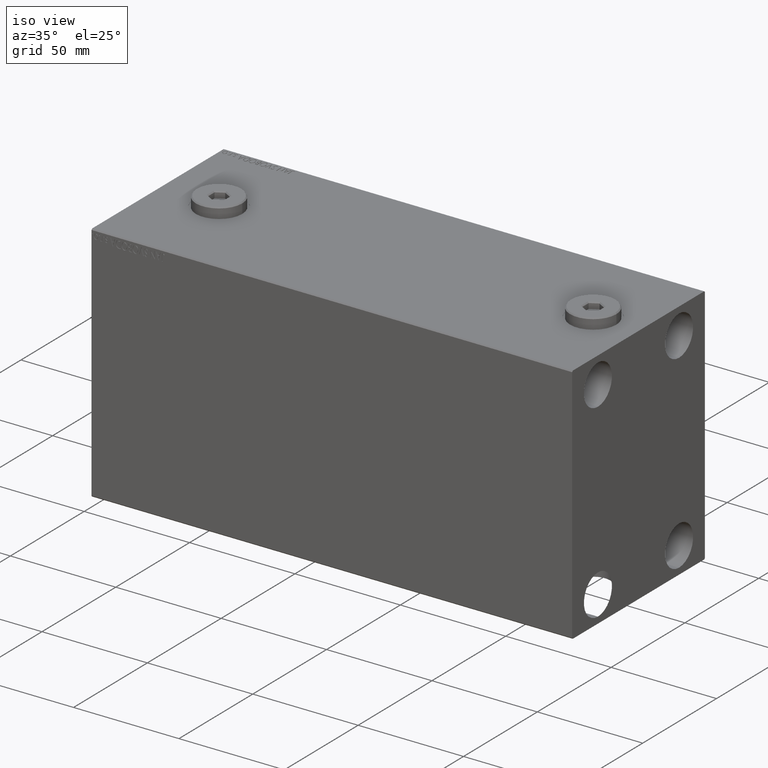
[diagram: clean part render]
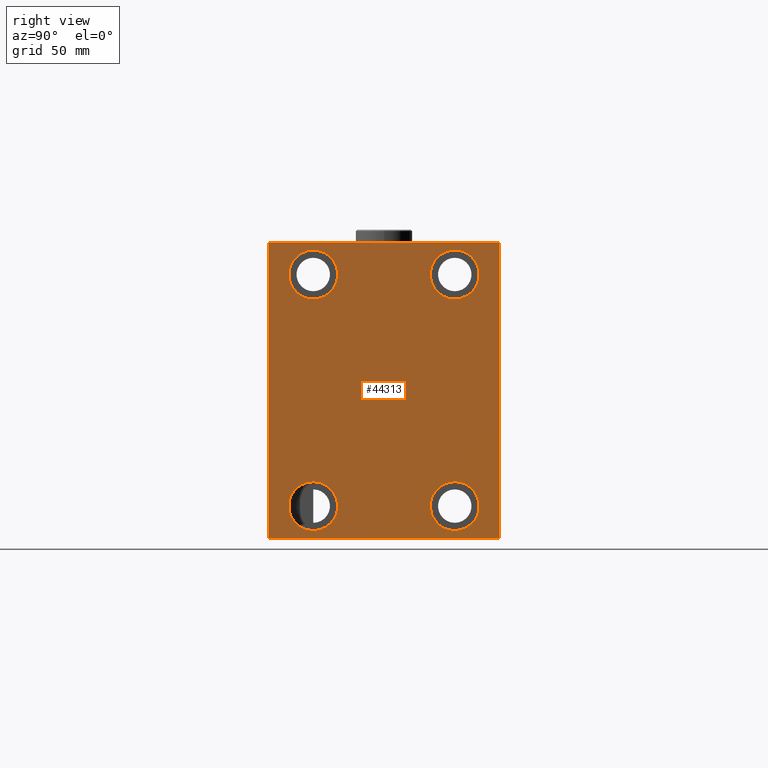
[diagram: tour spotlight — one face highlighted and labeled with its STEP entity id]
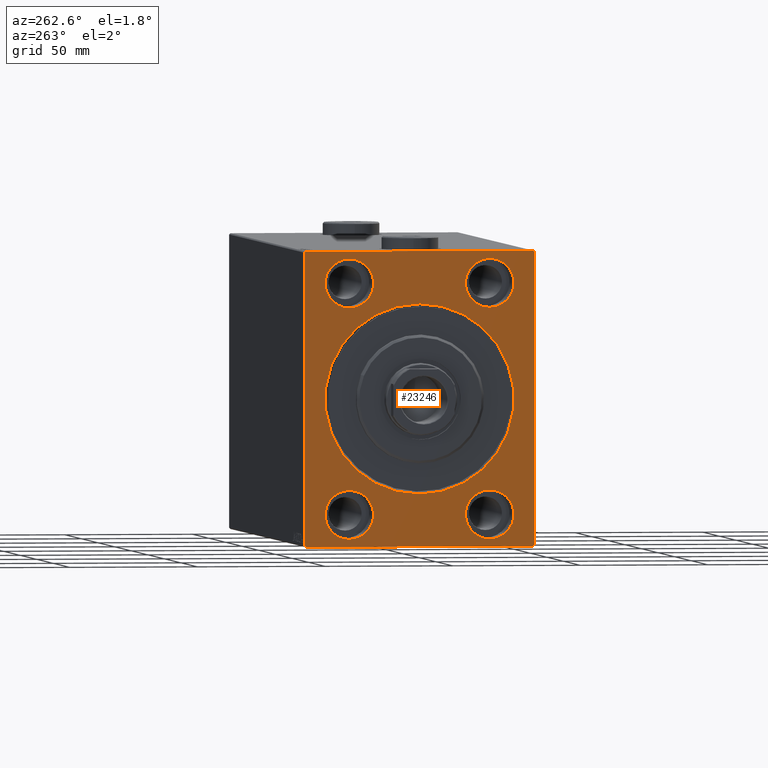
[diagram: tour spotlight — one face highlighted and labeled with its STEP entity id]
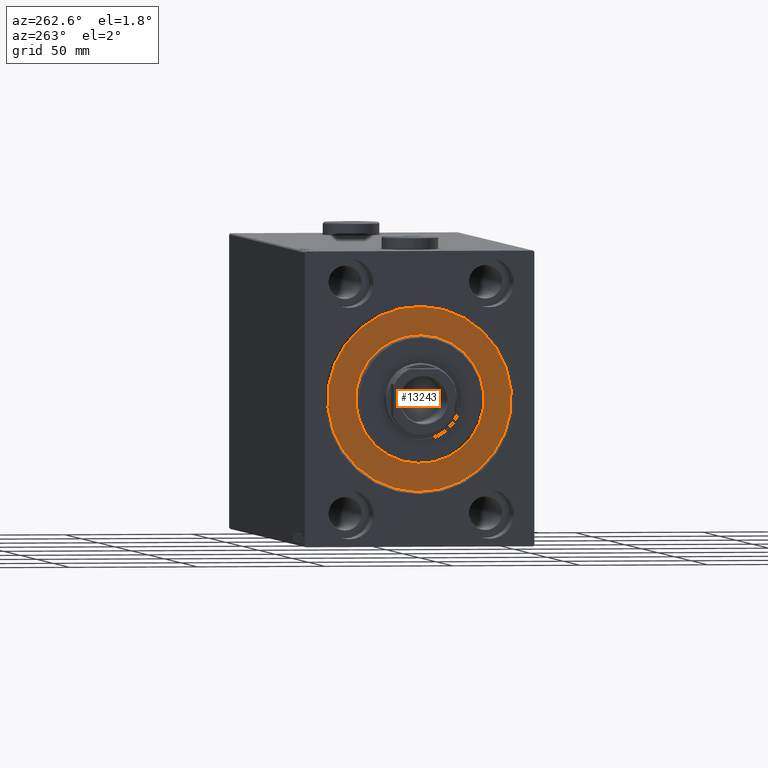
[diagram: tour spotlight — one face highlighted and labeled with its STEP entity id]
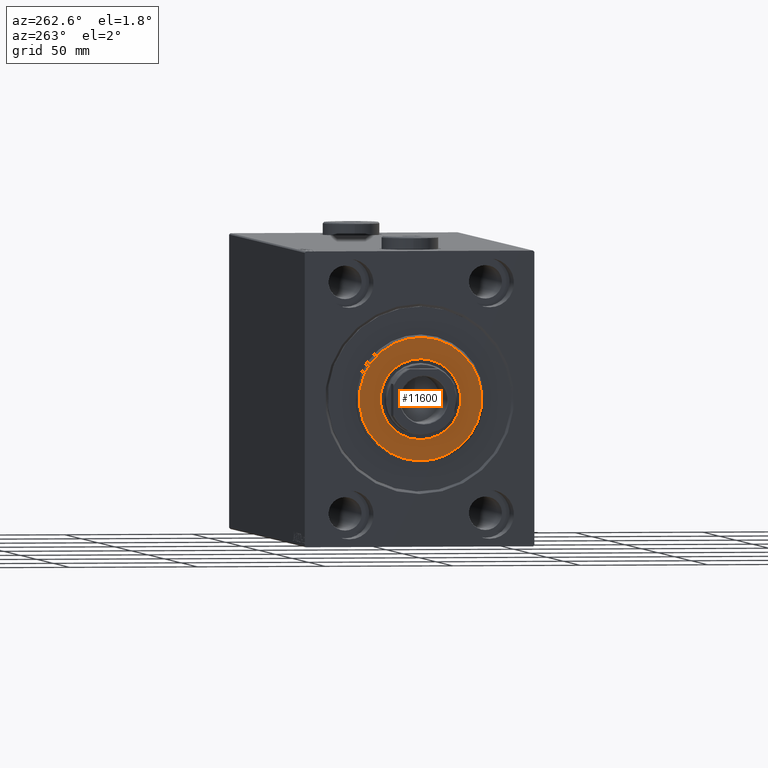
[diagram: tour spotlight — one face highlighted and labeled with its STEP entity id]
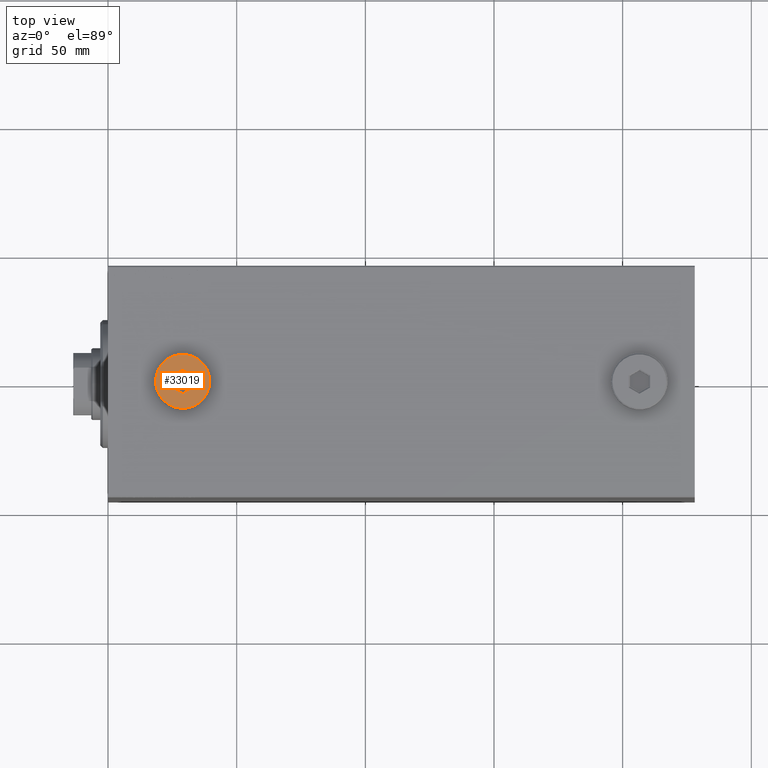
[diagram: tour spotlight — one face highlighted and labeled with its STEP entity id]
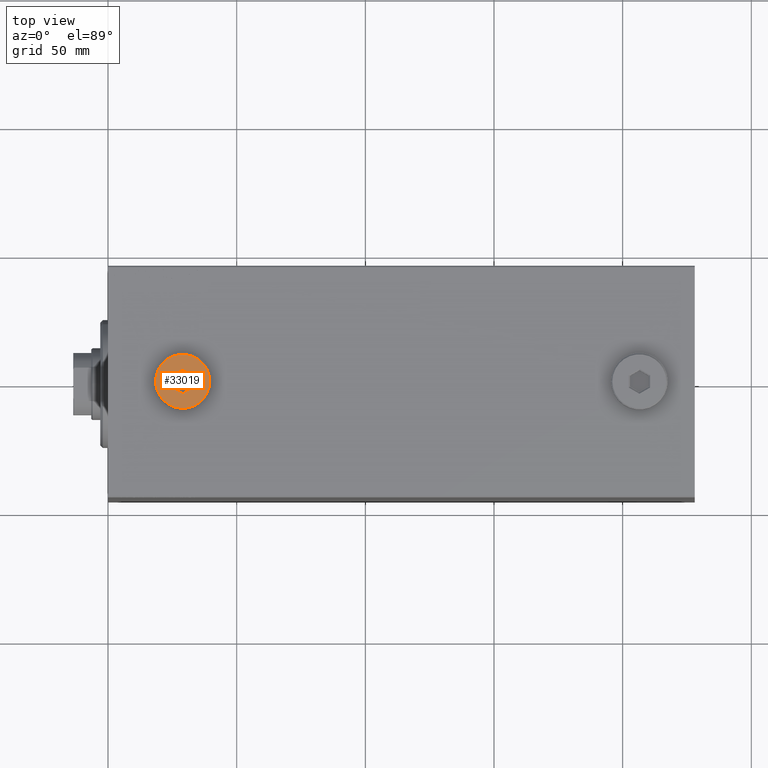
[diagram: tour spotlight — one face highlighted and labeled with its STEP entity id]
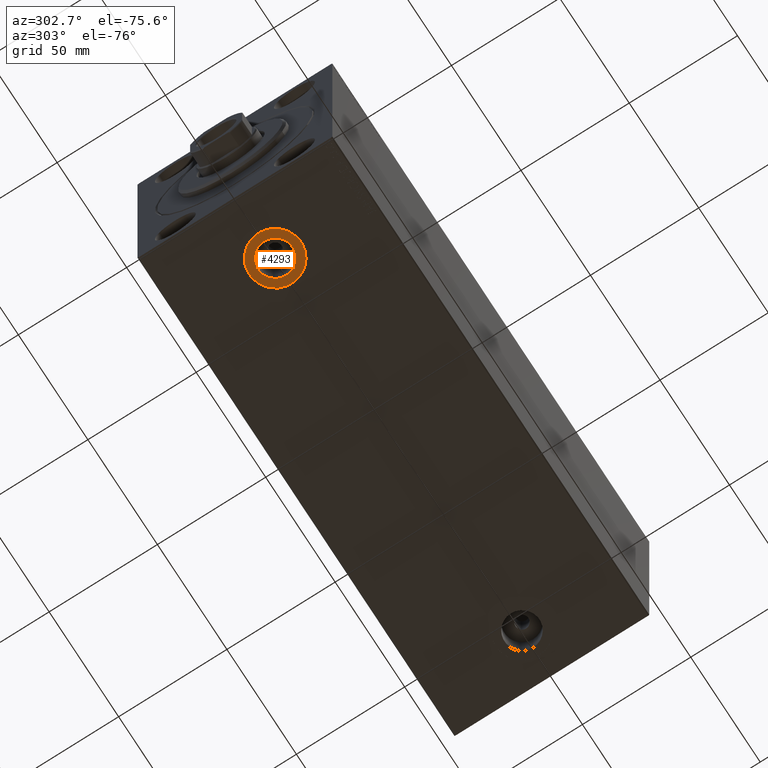
[diagram: tour spotlight — one face highlighted and labeled with its STEP entity id]
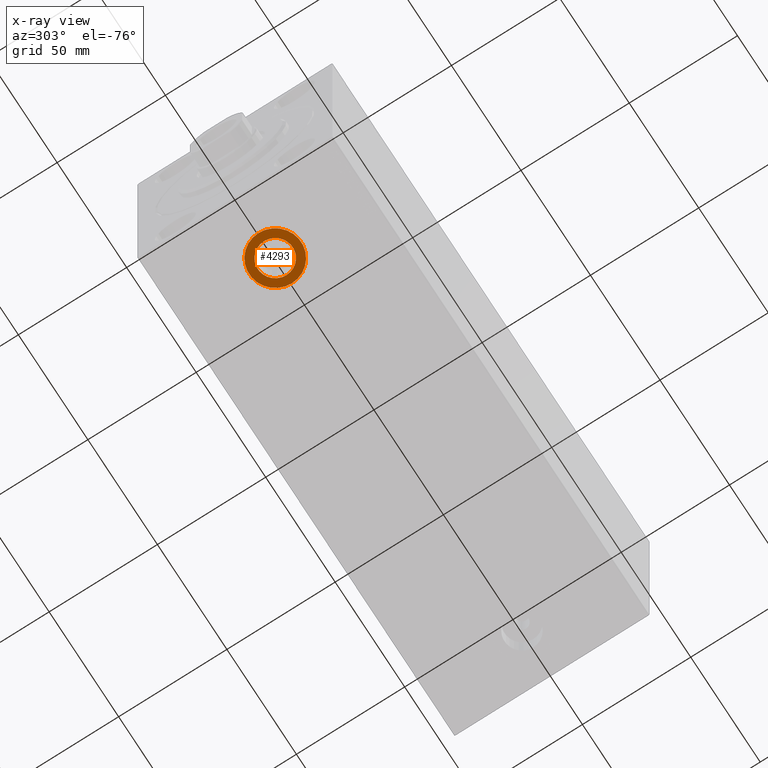
[diagram: x-ray of the same camera — body ghosted, this tour face saturated]
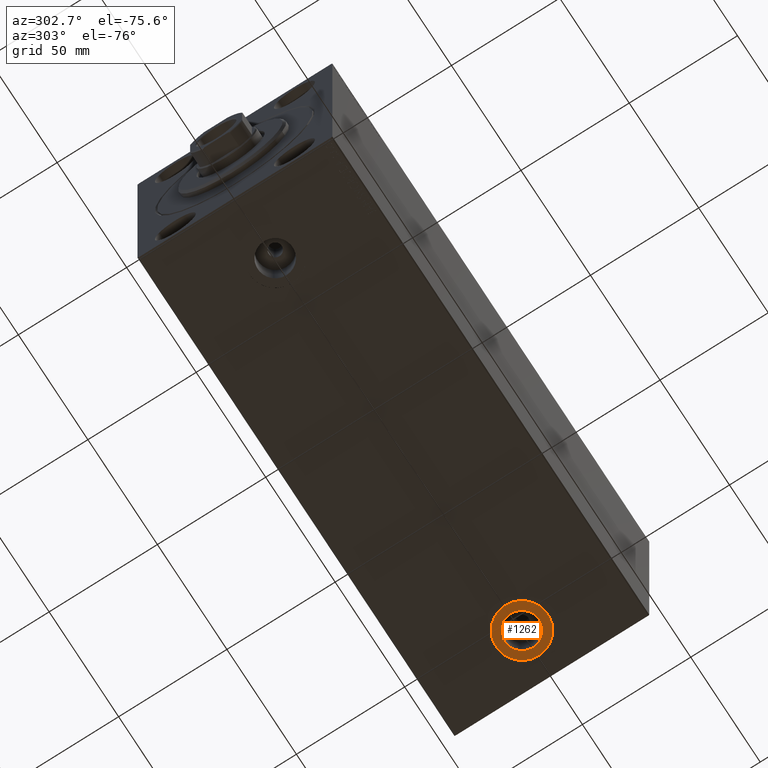
[diagram: tour spotlight — one face highlighted and labeled with its STEP entity id]
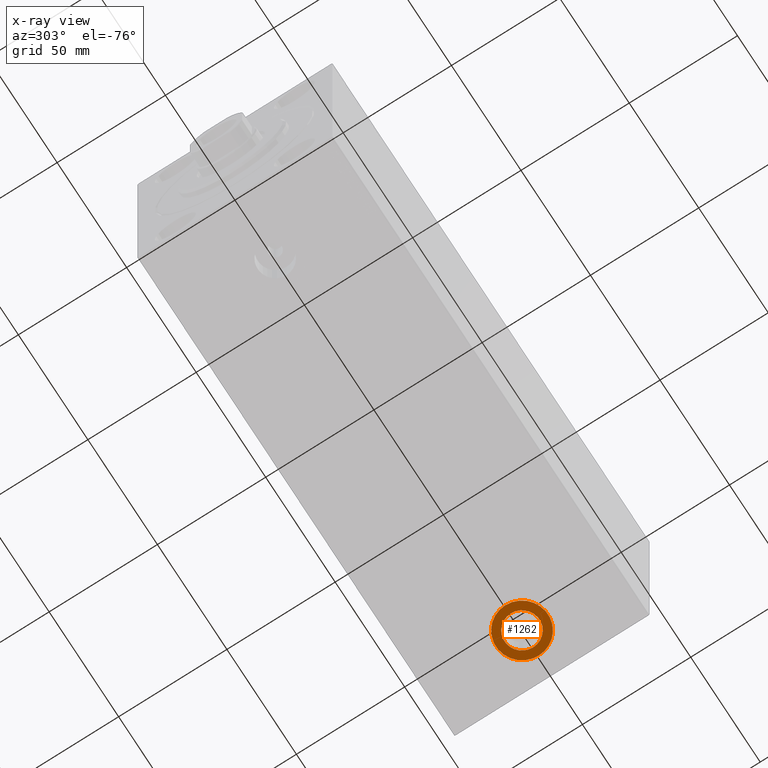
[diagram: x-ray of the same camera — body ghosted, this tour face saturated]
A machine part: a face-by-face anatomy tour. The part has 917 B-rep faces; the first image is the clean iso view, then the 8 largest visible faces are spotlighted one at a time (largest first), each with its STEP entity span.

Face 1 — right view, entity #44313. In plain terms, the highlighted planar face has unit normal (1, 0, 0).
Definition (entity closure, byte-faithful):
#94 = CARTESIAN_POINT ( 'NONE',  ( 228.0000000000000000, -27.49999999999998934, 54.50000000000000711 ) ) ;
#477 = EDGE_LOOP ( 'NONE', ( #38685, #41559 ) ) ;
#1184 = CIRCLE ( 'NONE', #8511, 9.500000000000001776 ) ;
#1192 = FACE_OUTER_BOUND ( 'NONE', #5665, .T. ) ;
#1497 = DIRECTION ( 'NONE',  ( -0.000000000000000000, -0.7071067811865671127, 0.7071067811865279218 ) ) ;
#1806 = DIRECTION ( 'NONE',  ( 0.000000000000000000, 0.000000000000000000, 1.000000000000000000 ) ) ;
#1946 = LINE ( 'NONE', #18442, #4343 ) ;
#2071 = CARTESIAN_POINT ( 'NONE',  ( 228.0000000000000000, -27.50000000000000000, -35.49999999999998579 ) ) ;
#2218 = CIRCLE ( 'NONE', #33683, 9.500000000000001776 ) ;
#2494 = LINE ( 'NONE', #17141, #44471 ) ;
#2508 = VERTEX_POINT ( 'NONE', #9547 ) ;
#3362 = CARTESIAN_POINT ( 'NONE',  ( 228.0000000000000000, 27.49999999999998934, -54.49999999999998579 ) ) ;
#3387 = CARTESIAN_POINT ( 'NONE',  ( 228.0000000000000000, 27.49999999999998934, -35.49999999999998579 ) ) ;
#3466 = ORIENTED_EDGE ( 'NONE', *, *, #22382, .T. ) ;
#4343 = VECTOR ( 'NONE', #1497, 1000.000000000000000 ) ;
#4631 = FACE_BOUND ( 'NONE', #25191, .T. ) ;
#4959 = CARTESIAN_POINT ( 'NONE',  ( 228.0000000000000000, 51.00000000000125056, -50.99999999999841549 ) ) ;
#4980 = VERTEX_POINT ( 'NONE', #2071 ) ;
#5665 = EDGE_LOOP ( 'NONE', ( #17437, #3466, #29252, #26441, #43602, #30848, #35297, #12758 ) ) ;
#6677 = VERTEX_POINT ( 'NONE', #32261 ) ;
#8511 = AXIS2_PLACEMENT_3D ( 'NONE', #21954, #15085, #25631 ) ;
#8608 = CIRCLE ( 'NONE', #34210, 9.500000000000001776 ) ;
#8760 = ORIENTED_EDGE ( 'NONE', *, *, #20994, .T. ) ;
#8972 = PLANE ( 'NONE',  #21768 ) ;
#9512 = VECTOR ( 'NONE', #23740, 1000.000000000000000 ) ;
#9547 = CARTESIAN_POINT ( 'NONE',  ( 228.0000000000000000, 45.00000000000000000, 57.00000000000000711 ) ) ;
#10118 = DIRECTION ( 'NONE',  ( -1.000000000000000000, -0.000000000000000000, -0.000000000000000000 ) ) ;
#10352 = EDGE_CURVE ( 'NONE', #6677, #19667, #35811, .T. ) ;
#10586 = VERTEX_POINT ( 'NONE', #37839 ) ;
#10639 = VERTEX_POINT ( 'NONE', #29097 ) ;
#10685 = EDGE_LOOP ( 'NONE', ( #10815, #42499 ) ) ;
#10815 = ORIENTED_EDGE ( 'NONE', *, *, #32636, .T. ) ;
#11460 = CARTESIAN_POINT ( 'NONE',  ( 228.0000000000000000, 45.00000000000001421, -57.50000000000000711 ) ) ;
#11723 = CARTESIAN_POINT ( 'NONE',  ( 228.0000000000000000, -27.49999999999998934, 45.00000000000000711 ) ) ;
#11961 = FACE_BOUND ( 'NONE', #10685, .T. ) ;
#11982 = EDGE_CURVE ( 'NONE', #15198, #36243, #22589, .T. ) ;
#12132 = DIRECTION ( 'NONE',  ( -1.000000000000000000, -0.000000000000000000, -0.000000000000000000 ) ) ;
#12424 = FACE_BOUND ( 'NONE', #477, .T. ) ;
#12695 = CARTESIAN_POINT ( 'NONE',  ( 228.0000000000000000, 44.49999999999998579, -57.50000000000000711 ) ) ;
#12758 = ORIENTED_EDGE ( 'NONE', *, *, #16203, .T. ) ;
#13126 = DIRECTION ( 'NONE',  ( 0.000000000000000000, 0.000000000000000000, 1.000000000000000000 ) ) ;
#13878 = AXIS2_PLACEMENT_3D ( 'NONE', #16113, #20213, #13126 ) ;
#14600 = CIRCLE ( 'NONE', #13878, 9.500000000000001776 ) ;
#15085 = DIRECTION ( 'NONE',  ( -1.000000000000000000, -0.000000000000000000, -0.000000000000000000 ) ) ;
#15109 = DIRECTION ( 'NONE',  ( 0.000000000000000000, 0.000000000000000000, 1.000000000000000000 ) ) ;
#15164 = DIRECTION ( 'NONE',  ( 1.000000000000000000, 0.000000000000000000, 0.000000000000000000 ) ) ;
#15198 = VERTEX_POINT ( 'NONE', #12695 ) ;
#15381 = DIRECTION ( 'NONE',  ( 0.000000000000000000, 0.000000000000000000, 1.000000000000000000 ) ) ;
#15731 = CIRCLE ( 'NONE', #41361, 9.500000000000001776 ) ;
#16075 = FACE_BOUND ( 'NONE', #22141, .T. ) ;
#16113 = CARTESIAN_POINT ( 'NONE',  ( 228.0000000000000000, -27.50000000000000000, -44.99999999999998579 ) ) ;
#16131 = VERTEX_POINT ( 'NONE', #24628 ) ;
#16203 = EDGE_CURVE ( 'NONE', #2508, #16710, #1946, .T. ) ;
#16648 = LINE ( 'NONE', #30617, #9512 ) ;
#16710 = VERTEX_POINT ( 'NONE', #20170 ) ;
#17141 = CARTESIAN_POINT ( 'NONE',  ( 228.0000000000000000, -50.99999999999877076, -51.00000000000159162 ) ) ;
#17200 = VECTOR ( 'NONE', #29777, 1000.000000000000000 ) ;
#17218 = CARTESIAN_POINT ( 'NONE',  ( 228.0000000000000000, 27.50000000000001066, 45.00000000000000711 ) ) ;
#17437 = ORIENTED_EDGE ( 'NONE', *, *, #27820, .T. ) ;
#17517 = AXIS2_PLACEMENT_3D ( 'NONE', #17218, #10118, #24095 ) ;
#18442 = CARTESIAN_POINT ( 'NONE',  ( 228.0000000000000000, 50.99999999999877076, 51.00000000000159162 ) ) ;
#18600 = CARTESIAN_POINT ( 'NONE',  ( 228.0000000000000000, 0.000000000000000000, 0.000000000000000000 ) ) ;
#18628 = CARTESIAN_POINT ( 'NONE',  ( 228.0000000000000000, -27.50000000000000000, -44.99999999999998579 ) ) ;
#18808 = VECTOR ( 'NONE', #28461, 1000.000000000000000 ) ;
#19084 = CARTESIAN_POINT ( 'NONE',  ( 228.0000000000000000, -44.50000000000000000, 57.49999999999999289 ) ) ;
#19667 = VERTEX_POINT ( 'NONE', #30218 ) ;
#20010 = AXIS2_PLACEMENT_3D ( 'NONE', #28829, #25638, #1806 ) ;
#20170 = CARTESIAN_POINT ( 'NONE',  ( 228.0000000000000000, 44.50000000000000000, 57.50000000000000711 ) ) ;
#20213 = DIRECTION ( 'NONE',  ( -1.000000000000000000, -0.000000000000000000, -0.000000000000000000 ) ) ;
#20334 = EDGE_CURVE ( 'NONE', #10639, #21171, #35801, .T. ) ;
#20994 = EDGE_CURVE ( 'NONE', #4980, #10586, #14600, .T. ) ;
#21171 = VERTEX_POINT ( 'NONE', #29349 ) ;
#21471 = CIRCLE ( 'NONE', #20010, 9.500000000000001776 ) ;
#21519 = VERTEX_POINT ( 'NONE', #3362 ) ;
#21762 = DIRECTION ( 'NONE',  ( 0.000000000000000000, 0.000000000000000000, 1.000000000000000000 ) ) ;
#21768 = AXIS2_PLACEMENT_3D ( 'NONE', #18600, #15164, #36483 ) ;
#21954 = CARTESIAN_POINT ( 'NONE',  ( 228.0000000000000000, 27.49999999999998934, -44.99999999999998579 ) ) ;
#22141 = EDGE_LOOP ( 'NONE', ( #33760, #24904 ) ) ;
#22240 = CARTESIAN_POINT ( 'NONE',  ( 228.0000000000000000, -44.50000000000000000, -57.50000000000000711 ) ) ;
#22382 = EDGE_CURVE ( 'NONE', #25762, #6677, #16648, .T. ) ;
#22476 = EDGE_CURVE ( 'NONE', #28575, #15198, #32651, .T. ) ;
#22589 = LINE ( 'NONE', #4959, #33529 ) ;
#22713 = EDGE_CURVE ( 'NONE', #10586, #4980, #2218, .T. ) ;
#23740 = DIRECTION ( 'NONE',  ( 0.000000000000000000, -0.7071067811865279218, -0.7071067811865671127 ) ) ;
#24039 = LINE ( 'NONE', #38924, #37556 ) ;
#24095 = DIRECTION ( 'NONE',  ( 0.000000000000000000, 0.000000000000000000, 1.000000000000000000 ) ) ;
#24628 = CARTESIAN_POINT ( 'NONE',  ( 228.0000000000000000, -27.49999999999998934, 35.50000000000000711 ) ) ;
#24904 = ORIENTED_EDGE ( 'NONE', *, *, #28899, .T. ) ;
#25191 = EDGE_LOOP ( 'NONE', ( #28619, #8760 ) ) ;
#25415 = VERTEX_POINT ( 'NONE', #3387 ) ;
#25631 = DIRECTION ( 'NONE',  ( 0.000000000000000000, 0.000000000000000000, 1.000000000000000000 ) ) ;
#25638 = DIRECTION ( 'NONE',  ( -1.000000000000000000, -0.000000000000000000, -0.000000000000000000 ) ) ;
#25762 = VERTEX_POINT ( 'NONE', #19084 ) ;
#26441 = ORIENTED_EDGE ( 'NONE', *, *, #38942, .T. ) ;
#27810 = VECTOR ( 'NONE', #32887, 1000.000000000000000 ) ;
#27820 = EDGE_CURVE ( 'NONE', #16710, #25762, #24039, .T. ) ;
#28169 = CARTESIAN_POINT ( 'NONE',  ( 228.0000000000000000, 27.49999999999998934, -44.99999999999998579 ) ) ;
#28461 = DIRECTION ( 'NONE',  ( 0.000000000000000000, 0.000000000000000000, -1.000000000000000000 ) ) ;
#28575 = VERTEX_POINT ( 'NONE', #22240 ) ;
#28609 = EDGE_CURVE ( 'NONE', #16131, #42289, #42725, .T. ) ;
#28619 = ORIENTED_EDGE ( 'NONE', *, *, #22713, .T. ) ;
#28829 = CARTESIAN_POINT ( 'NONE',  ( 228.0000000000000000, 27.50000000000001066, 45.00000000000000711 ) ) ;
#28899 = EDGE_CURVE ( 'NONE', #21171, #10639, #21471, .T. ) ;
#28981 = CARTESIAN_POINT ( 'NONE',  ( 228.0000000000000000, -45.00000000000000000, -57.50000000000000711 ) ) ;
#29097 = CARTESIAN_POINT ( 'NONE',  ( 228.0000000000000000, 27.50000000000001066, 35.50000000000000711 ) ) ;
#29252 = ORIENTED_EDGE ( 'NONE', *, *, #10352, .T. ) ;
#29349 = CARTESIAN_POINT ( 'NONE',  ( 228.0000000000000000, 27.50000000000001066, 54.50000000000000711 ) ) ;
#29777 = DIRECTION ( 'NONE',  ( 0.000000000000000000, -1.206764157201257045E-16, 1.000000000000000000 ) ) ;
#30218 = CARTESIAN_POINT ( 'NONE',  ( 228.0000000000000000, -45.00000000000000000, -57.00000000000003553 ) ) ;
#30617 = CARTESIAN_POINT ( 'NONE',  ( 228.0000000000000000, -51.00000000000123634, 50.99999999999841549 ) ) ;
#30848 = ORIENTED_EDGE ( 'NONE', *, *, #11982, .T. ) ;
#31109 = DIRECTION ( 'NONE',  ( -0.000000000000000000, 0.7071067811865671127, -0.7071067811865279218 ) ) ;
#32261 = CARTESIAN_POINT ( 'NONE',  ( 228.0000000000000000, -45.00000000000000000, 56.99999999999999289 ) ) ;
#32369 = DIRECTION ( 'NONE',  ( -1.000000000000000000, -0.000000000000000000, -0.000000000000000000 ) ) ;
#32636 = EDGE_CURVE ( 'NONE', #21519, #25415, #15731, .T. ) ;
#32651 = LINE ( 'NONE', #28981, #27810 ) ;
#32696 = EDGE_CURVE ( 'NONE', #36243, #2508, #40113, .T. ) ;
#32887 = DIRECTION ( 'NONE',  ( 0.000000000000000000, 1.000000000000000000, 0.000000000000000000 ) ) ;
#33529 = VECTOR ( 'NONE', #44129, 1000.000000000000000 ) ;
#33683 = AXIS2_PLACEMENT_3D ( 'NONE', #18628, #32369, #36273 ) ;
#33760 = ORIENTED_EDGE ( 'NONE', *, *, #20334, .T. ) ;
#34210 = AXIS2_PLACEMENT_3D ( 'NONE', #36422, #12132, #15109 ) ;
#35255 = DIRECTION ( 'NONE',  ( 0.000000000000000000, -1.000000000000000000, -1.541976423090495387E-16 ) ) ;
#35297 = ORIENTED_EDGE ( 'NONE', *, *, #32696, .T. ) ;
#35528 = EDGE_CURVE ( 'NONE', #25415, #21519, #1184, .T. ) ;
#35801 = CIRCLE ( 'NONE', #17517, 9.500000000000001776 ) ;
#35811 = LINE ( 'NONE', #42684, #18808 ) ;
#36243 = VERTEX_POINT ( 'NONE', #40527 ) ;
#36273 = DIRECTION ( 'NONE',  ( 0.000000000000000000, 0.000000000000000000, 1.000000000000000000 ) ) ;
#36422 = CARTESIAN_POINT ( 'NONE',  ( 228.0000000000000000, -27.49999999999998934, 45.00000000000000711 ) ) ;
#36483 = DIRECTION ( 'NONE',  ( 0.000000000000000000, 0.000000000000000000, -1.000000000000000000 ) ) ;
#36909 = DIRECTION ( 'NONE',  ( -1.000000000000000000, -0.000000000000000000, -0.000000000000000000 ) ) ;
#37556 = VECTOR ( 'NONE', #35255, 1000.000000000000000 ) ;
#37839 = CARTESIAN_POINT ( 'NONE',  ( 228.0000000000000000, -27.50000000000000000, -54.49999999999998579 ) ) ;
#38685 = ORIENTED_EDGE ( 'NONE', *, *, #28609, .T. ) ;
#38924 = CARTESIAN_POINT ( 'NONE',  ( 228.0000000000000000, 45.00000000000000000, 57.50000000000000711 ) ) ;
#38942 = EDGE_CURVE ( 'NONE', #19667, #28575, #2494, .T. ) ;
#38962 = DIRECTION ( 'NONE',  ( -1.000000000000000000, -0.000000000000000000, -0.000000000000000000 ) ) ;
#40113 = LINE ( 'NONE', #11460, #17200 ) ;
#40527 = CARTESIAN_POINT ( 'NONE',  ( 228.0000000000000000, 45.00000000000001421, -56.99999999999997868 ) ) ;
#40538 = AXIS2_PLACEMENT_3D ( 'NONE', #11723, #36909, #15381 ) ;
#41361 = AXIS2_PLACEMENT_3D ( 'NONE', #28169, #38962, #21762 ) ;
#41559 = ORIENTED_EDGE ( 'NONE', *, *, #44635, .T. ) ;
#42289 = VERTEX_POINT ( 'NONE', #94 ) ;
#42499 = ORIENTED_EDGE ( 'NONE', *, *, #35528, .T. ) ;
#42684 = CARTESIAN_POINT ( 'NONE',  ( 228.0000000000000000, -45.00000000000000000, 57.49999999999999289 ) ) ;
#42725 = CIRCLE ( 'NONE', #40538, 9.500000000000001776 ) ;
#43602 = ORIENTED_EDGE ( 'NONE', *, *, #22476, .T. ) ;
#44129 = DIRECTION ( 'NONE',  ( -0.000000000000000000, 0.7071067811865279218, 0.7071067811865672237 ) ) ;
#44313 = ADVANCED_FACE ( 'NONE', ( #11961, #12424, #16075, #4631, #1192 ), #8972, .T. ) ;
#44471 = VECTOR ( 'NONE', #31109, 1000.000000000000000 ) ;
#44635 = EDGE_CURVE ( 'NONE', #42289, #16131, #8608, .T. ) ;

Face 2 — auxiliary view, entity #23246. In plain terms, the highlighted planar face has unit normal (1, 0, 0).
Definition (entity closure, byte-faithful):
#523 = CARTESIAN_POINT ( 'NONE',  ( 0.000000000000000000, 27.49999999999998934, -44.99999999999998579 ) ) ;
#964 = ORIENTED_EDGE ( 'NONE', *, *, #33122, .F. ) ;
#1126 = ORIENTED_EDGE ( 'NONE', *, *, #39167, .F. ) ;
#1325 = DIRECTION ( 'NONE',  ( 0.000000000000000000, -1.000000000000000000, -1.541976423090495387E-16 ) ) ;
#1346 = VECTOR ( 'NONE', #34530, 1000.000000000000000 ) ;
#1768 = VECTOR ( 'NONE', #37924, 1000.000000000000000 ) ;
#1934 = EDGE_CURVE ( 'NONE', #24490, #20051, #37474, .T. ) ;
#2096 = VECTOR ( 'NONE', #27159, 1000.000000000000000 ) ;
#2407 = CARTESIAN_POINT ( 'NONE',  ( 0.000000000000000000, 0.000000000000000000, 0.000000000000000000 ) ) ;
#2743 = DIRECTION ( 'NONE',  ( 0.000000000000000000, 0.000000000000000000, 1.000000000000000000 ) ) ;
#3728 = DIRECTION ( 'NONE',  ( 0.000000000000000000, 0.000000000000000000, 1.000000000000000000 ) ) ;
#3963 = CARTESIAN_POINT ( 'NONE',  ( 0.000000000000000000, 27.50000000000001066, 54.50000000000000711 ) ) ;
#3998 = CARTESIAN_POINT ( 'NONE',  ( 0.000000000000000000, 44.49999999999998579, -57.50000000000000711 ) ) ;
#4013 = CIRCLE ( 'NONE', #34759, 9.500000000000001776 ) ;
#4288 = CARTESIAN_POINT ( 'NONE',  ( 0.000000000000000000, 27.50000000000001066, 45.00000000000000711 ) ) ;
#5115 = CARTESIAN_POINT ( 'NONE',  ( 0.000000000000000000, -45.00000000000000000, 56.99999999999999289 ) ) ;
#5399 = FACE_BOUND ( 'NONE', #32802, .T. ) ;
#6080 = CARTESIAN_POINT ( 'NONE',  ( 0.000000000000000000, 45.00000000000001421, -57.50000000000000711 ) ) ;
#6814 = EDGE_CURVE ( 'NONE', #28039, #24738, #30175, .T. ) ;
#6882 = EDGE_LOOP ( 'NONE', ( #28335, #41670 ) ) ;
#7264 = LINE ( 'NONE', #27875, #15835 ) ;
#7314 = EDGE_CURVE ( 'NONE', #21995, #16117, #19487, .T. ) ;
#8088 = VERTEX_POINT ( 'NONE', #37708 ) ;
#8105 = CIRCLE ( 'NONE', #32965, 9.500000000000001776 ) ;
#8239 = EDGE_CURVE ( 'NONE', #30378, #39022, #37771, .T. ) ;
#8325 = CARTESIAN_POINT ( 'NONE',  ( 0.000000000000000000, -27.50000000000000000, -44.99999999999998579 ) ) ;
#9197 = ORIENTED_EDGE ( 'NONE', *, *, #24177, .F. ) ;
#9458 = CARTESIAN_POINT ( 'NONE',  ( 0.000000000000000000, 27.50000000000001066, 45.00000000000000711 ) ) ;
#9726 = DIRECTION ( 'NONE',  ( 1.000000000000000000, 0.000000000000000000, 0.000000000000000000 ) ) ;
#10016 = CARTESIAN_POINT ( 'NONE',  ( 0.000000000000000000, -44.50000000000000000, -57.50000000000000711 ) ) ;
#10333 = EDGE_LOOP ( 'NONE', ( #27952, #9197 ) ) ;
#10418 = VECTOR ( 'NONE', #41134, 1000.000000000000000 ) ;
#10420 = EDGE_CURVE ( 'NONE', #32343, #21125, #12205, .T. ) ;
#10872 = CIRCLE ( 'NONE', #42346, 9.500000000000001776 ) ;
#10929 = EDGE_CURVE ( 'NONE', #8088, #33129, #44460, .T. ) ;
#11486 = CIRCLE ( 'NONE', #31221, 36.99999999999997868 ) ;
#11996 = DIRECTION ( 'NONE',  ( 0.000000000000000000, 0.000000000000000000, 1.000000000000000000 ) ) ;
#12205 = LINE ( 'NONE', #5115, #26135 ) ;
#12275 = FACE_OUTER_BOUND ( 'NONE', #16645, .T. ) ;
#12531 = EDGE_CURVE ( 'NONE', #28039, #26268, #20330, .T. ) ;
#12721 = CARTESIAN_POINT ( 'NONE',  ( 0.000000000000000000, 44.50000000000000000, 57.50000000000000711 ) ) ;
#12773 = DIRECTION ( 'NONE',  ( 0.000000000000000000, 1.000000000000000000, 0.000000000000000000 ) ) ;
#12857 = AXIS2_PLACEMENT_3D ( 'NONE', #28647, #25210, #18347 ) ;
#12893 = DIRECTION ( 'NONE',  ( -1.000000000000000000, 0.000000000000000000, 0.000000000000000000 ) ) ;
#13190 = LINE ( 'NONE', #15720, #2096 ) ;
#13475 = ORIENTED_EDGE ( 'NONE', *, *, #36328, .T. ) ;
#13508 = EDGE_CURVE ( 'NONE', #32343, #26268, #13190, .T. ) ;
#14736 = DIRECTION ( 'NONE',  ( 0.000000000000000000, 0.000000000000000000, 1.000000000000000000 ) ) ;
#14950 = ORIENTED_EDGE ( 'NONE', *, *, #7314, .F. ) ;
#15478 = DIRECTION ( 'NONE',  ( 0.000000000000000000, 0.000000000000000000, 1.000000000000000000 ) ) ;
#15720 = CARTESIAN_POINT ( 'NONE',  ( 0.000000000000000000, -45.00000000000000000, 57.49999999999999289 ) ) ;
#15835 = VECTOR ( 'NONE', #17569, 1000.000000000000000 ) ;
#15929 = DIRECTION ( 'NONE',  ( -1.000000000000000000, 0.000000000000000000, 0.000000000000000000 ) ) ;
#16117 = VERTEX_POINT ( 'NONE', #28515 ) ;
#16416 = EDGE_CURVE ( 'NONE', #38540, #39712, #26292, .T. ) ;
#16645 = EDGE_LOOP ( 'NONE', ( #43029, #28050, #1126, #27372, #22440, #13475, #18413, #36187 ) ) ;
#16757 = EDGE_LOOP ( 'NONE', ( #44477, #40655 ) ) ;
#16950 = CARTESIAN_POINT ( 'NONE',  ( 0.000000000000000000, -27.49999999999998934, 45.00000000000000711 ) ) ;
#17569 = DIRECTION ( 'NONE',  ( 0.000000000000000000, -0.7071067811865279218, -0.7071067811865672237 ) ) ;
#17709 = CARTESIAN_POINT ( 'NONE',  ( 0.000000000000000000, 45.00000000000000000, 57.00000000000000711 ) ) ;
#17965 = VECTOR ( 'NONE', #12773, 1000.000000000000000 ) ;
#18004 = AXIS2_PLACEMENT_3D ( 'NONE', #30041, #44254, #40820 ) ;
#18019 = DIRECTION ( 'NONE',  ( -1.000000000000000000, 0.000000000000000000, 0.000000000000000000 ) ) ;
#18347 = DIRECTION ( 'NONE',  ( 0.000000000000000000, 0.000000000000000000, -1.000000000000000000 ) ) ;
#18413 = ORIENTED_EDGE ( 'NONE', *, *, #6814, .F. ) ;
#19043 = EDGE_CURVE ( 'NONE', #39712, #38540, #10872, .T. ) ;
#19487 = CIRCLE ( 'NONE', #42919, 9.500000000000001776 ) ;
#20030 = FACE_BOUND ( 'NONE', #23770, .T. ) ;
#20031 = LINE ( 'NONE', #12721, #10418 ) ;
#20051 = VERTEX_POINT ( 'NONE', #17709 ) ;
#20245 = CARTESIAN_POINT ( 'NONE',  ( 0.000000000000000000, -27.49999999999998934, 54.50000000000000711 ) ) ;
#20330 = LINE ( 'NONE', #10016, #1346 ) ;
#21125 = VERTEX_POINT ( 'NONE', #28424 ) ;
#21133 = CARTESIAN_POINT ( 'NONE',  ( 0.000000000000000000, -27.50000000000000000, -54.49999999999998579 ) ) ;
#21530 = CARTESIAN_POINT ( 'NONE',  ( 0.000000000000000000, 27.49999999999998934, -54.49999999999998579 ) ) ;
#21546 = CARTESIAN_POINT ( 'NONE',  ( 0.000000000000000000, -45.00000000000000000, 56.99999999999999289 ) ) ;
#21710 = CARTESIAN_POINT ( 'NONE',  ( 0.000000000000000000, -45.00000000000000000, -57.00000000000003553 ) ) ;
#21995 = VERTEX_POINT ( 'NONE', #21133 ) ;
#22440 = ORIENTED_EDGE ( 'NONE', *, *, #1934, .F. ) ;
#22616 = CARTESIAN_POINT ( 'NONE',  ( 0.000000000000000000, 0.000000000000000000, 36.99999999999997868 ) ) ;
#22630 = AXIS2_PLACEMENT_3D ( 'NONE', #523, #42228, #3728 ) ;
#23146 = CARTESIAN_POINT ( 'NONE',  ( 0.000000000000000000, 44.50000000000000000, 57.50000000000000711 ) ) ;
#23246 = ADVANCED_FACE ( 'NONE', ( #44344, #5399, #33343, #27143, #20030, #12275 ), #33795, .F. ) ;
#23430 = DIRECTION ( 'NONE',  ( 0.000000000000000000, 0.000000000000000000, 1.000000000000000000 ) ) ;
#23660 = EDGE_CURVE ( 'NONE', #33129, #8088, #42485, .T. ) ;
#23770 = EDGE_LOOP ( 'NONE', ( #964, #14950 ) ) ;
#24177 = EDGE_CURVE ( 'NONE', #39022, #30378, #8105, .T. ) ;
#24490 = VERTEX_POINT ( 'NONE', #39535 ) ;
#24546 = CIRCLE ( 'NONE', #12857, 36.99999999999997868 ) ;
#24678 = VECTOR ( 'NONE', #1325, 1000.000000000000000 ) ;
#24738 = VERTEX_POINT ( 'NONE', #3998 ) ;
#24818 = CARTESIAN_POINT ( 'NONE',  ( 0.000000000000000000, -27.50000000000000000, -44.99999999999998579 ) ) ;
#25210 = DIRECTION ( 'NONE',  ( 1.000000000000000000, 0.000000000000000000, 0.000000000000000000 ) ) ;
#25657 = AXIS2_PLACEMENT_3D ( 'NONE', #9458, #12893, #23430 ) ;
#26135 = VECTOR ( 'NONE', #30273, 1000.000000000000000 ) ;
#26268 = VERTEX_POINT ( 'NONE', #21710 ) ;
#26292 = CIRCLE ( 'NONE', #22630, 9.500000000000001776 ) ;
#26469 = CARTESIAN_POINT ( 'NONE',  ( 0.000000000000000000, 27.49999999999998934, -44.99999999999998579 ) ) ;
#26601 = EDGE_CURVE ( 'NONE', #42088, #20051, #20031, .T. ) ;
#26907 = LINE ( 'NONE', #44782, #24678 ) ;
#27143 = FACE_BOUND ( 'NONE', #6882, .T. ) ;
#27159 = DIRECTION ( 'NONE',  ( 0.000000000000000000, 0.000000000000000000, -1.000000000000000000 ) ) ;
#27372 = ORIENTED_EDGE ( 'NONE', *, *, #26601, .T. ) ;
#27875 = CARTESIAN_POINT ( 'NONE',  ( 0.000000000000000000, 45.00000000000001421, -56.99999999999997868 ) ) ;
#27952 = ORIENTED_EDGE ( 'NONE', *, *, #8239, .F. ) ;
#28039 = VERTEX_POINT ( 'NONE', #28245 ) ;
#28050 = ORIENTED_EDGE ( 'NONE', *, *, #10420, .T. ) ;
#28245 = CARTESIAN_POINT ( 'NONE',  ( 0.000000000000000000, -44.50000000000000000, -57.50000000000000711 ) ) ;
#28335 = ORIENTED_EDGE ( 'NONE', *, *, #23660, .F. ) ;
#28424 = CARTESIAN_POINT ( 'NONE',  ( 0.000000000000000000, -44.50000000000000000, 57.49999999999999289 ) ) ;
#28515 = CARTESIAN_POINT ( 'NONE',  ( 0.000000000000000000, -27.50000000000000000, -35.49999999999998579 ) ) ;
#28647 = CARTESIAN_POINT ( 'NONE',  ( 0.000000000000000000, 0.000000000000000000, 0.000000000000000000 ) ) ;
#28941 = DIRECTION ( 'NONE',  ( -1.000000000000000000, 0.000000000000000000, 0.000000000000000000 ) ) ;
#30041 = CARTESIAN_POINT ( 'NONE',  ( 0.000000000000000000, -27.49999999999998934, 45.00000000000000711 ) ) ;
#30122 = VERTEX_POINT ( 'NONE', #22616 ) ;
#30175 = LINE ( 'NONE', #34299, #17965 ) ;
#30273 = DIRECTION ( 'NONE',  ( -0.000000000000000000, 0.7071067811865279218, 0.7071067811865671127 ) ) ;
#30378 = VERTEX_POINT ( 'NONE', #20245 ) ;
#30884 = CARTESIAN_POINT ( 'NONE',  ( 0.000000000000000000, -27.49999999999998934, 35.50000000000000711 ) ) ;
#31221 = AXIS2_PLACEMENT_3D ( 'NONE', #38636, #45068, #37971 ) ;
#32343 = VERTEX_POINT ( 'NONE', #21546 ) ;
#32802 = EDGE_LOOP ( 'NONE', ( #44731, #44646 ) ) ;
#32965 = AXIS2_PLACEMENT_3D ( 'NONE', #16950, #45354, #2743 ) ;
#33122 = EDGE_CURVE ( 'NONE', #16117, #21995, #4013, .T. ) ;
#33129 = VERTEX_POINT ( 'NONE', #3963 ) ;
#33343 = FACE_BOUND ( 'NONE', #10333, .T. ) ;
#33377 = EDGE_CURVE ( 'NONE', #30122, #35336, #24546, .T. ) ;
#33795 = PLANE ( 'NONE',  #35903 ) ;
#34299 = CARTESIAN_POINT ( 'NONE',  ( 0.000000000000000000, -45.00000000000000000, -57.50000000000000711 ) ) ;
#34530 = DIRECTION ( 'NONE',  ( -0.000000000000000000, -0.7071067811865671127, 0.7071067811865279218 ) ) ;
#34759 = AXIS2_PLACEMENT_3D ( 'NONE', #24818, #39028, #14736 ) ;
#34942 = AXIS2_PLACEMENT_3D ( 'NONE', #4288, #18019, #35673 ) ;
#35057 = CARTESIAN_POINT ( 'NONE',  ( 0.000000000000000000, 27.49999999999998934, -35.49999999999998579 ) ) ;
#35336 = VERTEX_POINT ( 'NONE', #44907 ) ;
#35673 = DIRECTION ( 'NONE',  ( 0.000000000000000000, 0.000000000000000000, 1.000000000000000000 ) ) ;
#35903 = AXIS2_PLACEMENT_3D ( 'NONE', #2407, #9726, #37465 ) ;
#36187 = ORIENTED_EDGE ( 'NONE', *, *, #12531, .T. ) ;
#36328 = EDGE_CURVE ( 'NONE', #24490, #24738, #7264, .T. ) ;
#37363 = EDGE_CURVE ( 'NONE', #35336, #30122, #11486, .T. ) ;
#37465 = DIRECTION ( 'NONE',  ( 0.000000000000000000, 0.000000000000000000, -1.000000000000000000 ) ) ;
#37474 = LINE ( 'NONE', #6080, #1768 ) ;
#37708 = CARTESIAN_POINT ( 'NONE',  ( 0.000000000000000000, 27.50000000000001066, 35.50000000000000711 ) ) ;
#37771 = CIRCLE ( 'NONE', #18004, 9.500000000000001776 ) ;
#37924 = DIRECTION ( 'NONE',  ( 0.000000000000000000, -1.206764157201257045E-16, 1.000000000000000000 ) ) ;
#37971 = DIRECTION ( 'NONE',  ( 0.000000000000000000, 0.000000000000000000, -1.000000000000000000 ) ) ;
#38540 = VERTEX_POINT ( 'NONE', #35057 ) ;
#38636 = CARTESIAN_POINT ( 'NONE',  ( 0.000000000000000000, 0.000000000000000000, 0.000000000000000000 ) ) ;
#39022 = VERTEX_POINT ( 'NONE', #30884 ) ;
#39028 = DIRECTION ( 'NONE',  ( -1.000000000000000000, 0.000000000000000000, 0.000000000000000000 ) ) ;
#39167 = EDGE_CURVE ( 'NONE', #42088, #21125, #26907, .T. ) ;
#39535 = CARTESIAN_POINT ( 'NONE',  ( 0.000000000000000000, 45.00000000000001421, -56.99999999999997868 ) ) ;
#39712 = VERTEX_POINT ( 'NONE', #21530 ) ;
#40655 = ORIENTED_EDGE ( 'NONE', *, *, #37363, .T. ) ;
#40820 = DIRECTION ( 'NONE',  ( 0.000000000000000000, 0.000000000000000000, 1.000000000000000000 ) ) ;
#41134 = DIRECTION ( 'NONE',  ( -0.000000000000000000, 0.7071067811865671127, -0.7071067811865279218 ) ) ;
#41670 = ORIENTED_EDGE ( 'NONE', *, *, #10929, .F. ) ;
#42088 = VERTEX_POINT ( 'NONE', #23146 ) ;
#42228 = DIRECTION ( 'NONE',  ( -1.000000000000000000, 0.000000000000000000, 0.000000000000000000 ) ) ;
#42346 = AXIS2_PLACEMENT_3D ( 'NONE', #26469, #15929, #15478 ) ;
#42485 = CIRCLE ( 'NONE', #25657, 9.500000000000001776 ) ;
#42919 = AXIS2_PLACEMENT_3D ( 'NONE', #8325, #28941, #11996 ) ;
#43029 = ORIENTED_EDGE ( 'NONE', *, *, #13508, .F. ) ;
#44254 = DIRECTION ( 'NONE',  ( -1.000000000000000000, 0.000000000000000000, 0.000000000000000000 ) ) ;
#44344 = FACE_BOUND ( 'NONE', #16757, .T. ) ;
#44460 = CIRCLE ( 'NONE', #34942, 9.500000000000001776 ) ;
#44477 = ORIENTED_EDGE ( 'NONE', *, *, #33377, .T. ) ;
#44646 = ORIENTED_EDGE ( 'NONE', *, *, #19043, .F. ) ;
#44731 = ORIENTED_EDGE ( 'NONE', *, *, #16416, .F. ) ;
#44782 = CARTESIAN_POINT ( 'NONE',  ( 0.000000000000000000, 45.00000000000000000, 57.50000000000000711 ) ) ;
#44907 = CARTESIAN_POINT ( 'NONE',  ( 0.000000000000000000, 4.531193156845203637E-15, -36.99999999999997868 ) ) ;
#45068 = DIRECTION ( 'NONE',  ( 1.000000000000000000, 0.000000000000000000, 0.000000000000000000 ) ) ;
#45354 = DIRECTION ( 'NONE',  ( -1.000000000000000000, 0.000000000000000000, 0.000000000000000000 ) ) ;

Face 3 — auxiliary view, entity #13243. In plain terms, the highlighted planar face has unit normal (1, 0, -0).
Definition (entity closure, byte-faithful):
#684 = DIRECTION ( 'NONE',  ( 0.000000000000000000, 0.000000000000000000, 1.000000000000000000 ) ) ;
#1341 = CARTESIAN_POINT ( 'NONE',  ( 0.000000000000000000, 0.000000000000000000, -36.00000000000000000 ) ) ;
#2811 = AXIS2_PLACEMENT_3D ( 'NONE', #10522, #27932, #684 ) ;
#6934 = CARTESIAN_POINT ( 'NONE',  ( 0.000000000000000000, 0.000000000000000000, 0.000000000000000000 ) ) ;
#7033 = FACE_BOUND ( 'NONE', #14476, .T. ) ;
#7265 = CARTESIAN_POINT ( 'NONE',  ( 0.000000000000000000, 0.000000000000000000, 0.000000000000000000 ) ) ;
#7613 = ORIENTED_EDGE ( 'NONE', *, *, #14437, .F. ) ;
#8568 = ORIENTED_EDGE ( 'NONE', *, *, #35224, .F. ) ;
#9081 = DIRECTION ( 'NONE',  ( 1.000000000000000000, -0.000000000000000000, 0.000000000000000000 ) ) ;
#9691 = ORIENTED_EDGE ( 'NONE', *, *, #38421, .F. ) ;
#10522 = CARTESIAN_POINT ( 'NONE',  ( 0.000000000000000000, 0.000000000000000000, 0.000000000000000000 ) ) ;
#12696 = CARTESIAN_POINT ( 'NONE',  ( 0.000000000000000000, 3.061616997868383043E-15, -25.00000000000000000 ) ) ;
#13243 = ADVANCED_FACE ( 'NONE', ( #7033, #45090 ), #34987, .F. ) ;
#14125 = DIRECTION ( 'NONE',  ( 0.000000000000000000, 0.000000000000000000, 1.000000000000000000 ) ) ;
#14437 = EDGE_CURVE ( 'NONE', #41075, #25082, #22562, .T. ) ;
#14476 = EDGE_LOOP ( 'NONE', ( #21943, #8568 ) ) ;
#16563 = AXIS2_PLACEMENT_3D ( 'NONE', #21323, #31630, #28651 ) ;
#16864 = DIRECTION ( 'NONE',  ( 0.000000000000000000, 0.000000000000000000, -1.000000000000000000 ) ) ;
#17199 = CARTESIAN_POINT ( 'NONE',  ( 0.000000000000000000, 4.408728476930470856E-15, 36.00000000000000000 ) ) ;
#17210 = VERTEX_POINT ( 'NONE', #12696 ) ;
#19851 = EDGE_LOOP ( 'NONE', ( #7613, #9691 ) ) ;
#20001 = VERTEX_POINT ( 'NONE', #44338 ) ;
#21323 = CARTESIAN_POINT ( 'NONE',  ( 0.000000000000000000, 0.000000000000000000, 0.000000000000000000 ) ) ;
#21737 = AXIS2_PLACEMENT_3D ( 'NONE', #6934, #34661, #34880 ) ;
#21943 = ORIENTED_EDGE ( 'NONE', *, *, #37991, .F. ) ;
#22562 = CIRCLE ( 'NONE', #2811, 36.00000000000000000 ) ;
#25082 = VERTEX_POINT ( 'NONE', #17199 ) ;
#26037 = CIRCLE ( 'NONE', #16563, 25.00000000000000000 ) ;
#26815 = DIRECTION ( 'NONE',  ( -1.000000000000000000, 0.000000000000000000, 0.000000000000000000 ) ) ;
#26857 = AXIS2_PLACEMENT_3D ( 'NONE', #44370, #9081, #16864 ) ;
#27932 = DIRECTION ( 'NONE',  ( -1.000000000000000000, 0.000000000000000000, 0.000000000000000000 ) ) ;
#28651 = DIRECTION ( 'NONE',  ( 0.000000000000000000, 0.000000000000000000, -1.000000000000000000 ) ) ;
#31630 = DIRECTION ( 'NONE',  ( 1.000000000000000000, -0.000000000000000000, 0.000000000000000000 ) ) ;
#34661 = DIRECTION ( 'NONE',  ( -1.000000000000000000, 0.000000000000000000, 0.000000000000000000 ) ) ;
#34880 = DIRECTION ( 'NONE',  ( 0.000000000000000000, 0.000000000000000000, 1.000000000000000000 ) ) ;
#34987 = PLANE ( 'NONE',  #44532 ) ;
#35224 = EDGE_CURVE ( 'NONE', #17210, #20001, #26037, .T. ) ;
#37880 = CIRCLE ( 'NONE', #21737, 36.00000000000000000 ) ;
#37991 = EDGE_CURVE ( 'NONE', #20001, #17210, #41484, .T. ) ;
#38421 = EDGE_CURVE ( 'NONE', #25082, #41075, #37880, .T. ) ;
#41075 = VERTEX_POINT ( 'NONE', #1341 ) ;
#41484 = CIRCLE ( 'NONE', #26857, 25.00000000000000000 ) ;
#44338 = CARTESIAN_POINT ( 'NONE',  ( 0.000000000000000000, 0.000000000000000000, 25.00000000000000000 ) ) ;
#44370 = CARTESIAN_POINT ( 'NONE',  ( 0.000000000000000000, 0.000000000000000000, 0.000000000000000000 ) ) ;
#44532 = AXIS2_PLACEMENT_3D ( 'NONE', #7265, #26815, #14125 ) ;
#45090 = FACE_OUTER_BOUND ( 'NONE', #19851, .T. ) ;

Face 4 — auxiliary view, entity #11600. In plain terms, the highlighted planar face has unit normal (-1, 0, 0).
Definition (entity closure, byte-faithful):
#771 = CARTESIAN_POINT ( 'NONE',  ( 3.000000000000000000, 0.000000000000000000, 24.00000000000000711 ) ) ;
#1306 = CIRCLE ( 'NONE', #28320, 24.00000000000000711 ) ;
#2914 = CARTESIAN_POINT ( 'NONE',  ( 3.000000000000000000, 0.000000000000000000, 15.75000000000000000 ) ) ;
#3261 = DIRECTION ( 'NONE',  ( -1.000000000000000000, 0.000000000000000000, -0.000000000000000000 ) ) ;
#6187 = DIRECTION ( 'NONE',  ( 1.000000000000000000, -0.000000000000000000, 0.000000000000000000 ) ) ;
#6379 = CIRCLE ( 'NONE', #31975, 15.75000000000000000 ) ;
#7751 = FACE_BOUND ( 'NONE', #11056, .T. ) ;
#8127 = CARTESIAN_POINT ( 'NONE',  ( 3.000000000000000000, 3.000384657911015469E-15, -24.00000000000000711 ) ) ;
#10970 = DIRECTION ( 'NONE',  ( 1.000000000000000000, -0.000000000000000000, 0.000000000000000000 ) ) ;
#11056 = EDGE_LOOP ( 'NONE', ( #39739, #32504 ) ) ;
#11339 = EDGE_CURVE ( 'NONE', #24740, #27236, #1306, .T. ) ;
#11600 = ADVANCED_FACE ( 'NONE', ( #28821, #7751 ), #22404, .T. ) ;
#15083 = CARTESIAN_POINT ( 'NONE',  ( 3.000000000000000000, 0.000000000000000000, 0.000000000000000000 ) ) ;
#15796 = AXIS2_PLACEMENT_3D ( 'NONE', #21218, #41862, #30861 ) ;
#16397 = EDGE_CURVE ( 'NONE', #18644, #41230, #20436, .T. ) ;
#18170 = ORIENTED_EDGE ( 'NONE', *, *, #35661, .T. ) ;
#18644 = VERTEX_POINT ( 'NONE', #43045 ) ;
#20436 = CIRCLE ( 'NONE', #32033, 15.75000000000000000 ) ;
#21144 = EDGE_LOOP ( 'NONE', ( #18170, #21824 ) ) ;
#21218 = CARTESIAN_POINT ( 'NONE',  ( 3.000000000000000000, 0.000000000000000000, 0.000000000000000000 ) ) ;
#21824 = ORIENTED_EDGE ( 'NONE', *, *, #11339, .T. ) ;
#22404 = PLANE ( 'NONE',  #40824 ) ;
#24740 = VERTEX_POINT ( 'NONE', #8127 ) ;
#24935 = DIRECTION ( 'NONE',  ( 0.000000000000000000, 0.000000000000000000, -1.000000000000000000 ) ) ;
#26678 = CARTESIAN_POINT ( 'NONE',  ( 3.000000000000000000, 0.000000000000000000, 0.000000000000000000 ) ) ;
#27236 = VERTEX_POINT ( 'NONE', #771 ) ;
#28320 = AXIS2_PLACEMENT_3D ( 'NONE', #40796, #6187, #44017 ) ;
#28821 = FACE_OUTER_BOUND ( 'NONE', #21144, .T. ) ;
#30861 = DIRECTION ( 'NONE',  ( 0.000000000000000000, 0.000000000000000000, -1.000000000000000000 ) ) ;
#31204 = CARTESIAN_POINT ( 'NONE',  ( 3.000000000000000000, 0.000000000000000000, 0.000000000000000000 ) ) ;
#31975 = AXIS2_PLACEMENT_3D ( 'NONE', #31204, #3261, #45199 ) ;
#32033 = AXIS2_PLACEMENT_3D ( 'NONE', #26678, #41569, #45005 ) ;
#32504 = ORIENTED_EDGE ( 'NONE', *, *, #16397, .T. ) ;
#35661 = EDGE_CURVE ( 'NONE', #27236, #24740, #37758, .T. ) ;
#37758 = CIRCLE ( 'NONE', #15796, 24.00000000000000711 ) ;
#39739 = ORIENTED_EDGE ( 'NONE', *, *, #43189, .T. ) ;
#40796 = CARTESIAN_POINT ( 'NONE',  ( 3.000000000000000000, 0.000000000000000000, 0.000000000000000000 ) ) ;
#40824 = AXIS2_PLACEMENT_3D ( 'NONE', #15083, #10970, #24935 ) ;
#41230 = VERTEX_POINT ( 'NONE', #2914 ) ;
#41569 = DIRECTION ( 'NONE',  ( -1.000000000000000000, 0.000000000000000000, -0.000000000000000000 ) ) ;
#41862 = DIRECTION ( 'NONE',  ( 1.000000000000000000, -0.000000000000000000, 0.000000000000000000 ) ) ;
#43045 = CARTESIAN_POINT ( 'NONE',  ( 3.000000000000000000, 1.928818708657080950E-15, -15.75000000000000000 ) ) ;
#43189 = EDGE_CURVE ( 'NONE', #41230, #18644, #6379, .T. ) ;
#44017 = DIRECTION ( 'NONE',  ( 0.000000000000000000, 0.000000000000000000, -1.000000000000000000 ) ) ;
#45005 = DIRECTION ( 'NONE',  ( 0.000000000000000000, 0.000000000000000000, -1.000000000000000000 ) ) ;
#45199 = DIRECTION ( 'NONE',  ( 0.000000000000000000, 0.000000000000000000, -1.000000000000000000 ) ) ;

Face 5 — top view, entity #33019. In plain terms, the highlighted planar face has unit normal (0, 0, 1).
Definition (entity closure, byte-faithful):
#389 = ORIENTED_EDGE ( 'NONE', *, *, #24363, .T. ) ;
#908 = LINE ( 'NONE', #19170, #39611 ) ;
#1123 = AXIS2_PLACEMENT_3D ( 'NONE', #36831, #30394, #9330 ) ;
#1431 = EDGE_LOOP ( 'NONE', ( #4130, #31589, #45152, #21532, #8859, #389 ) ) ;
#1515 = EDGE_CURVE ( 'NONE', #38429, #32365, #23540, .T. ) ;
#1765 = DIRECTION ( 'NONE',  ( 0.8660254037844388186, 0.4999999999999997780, 0.000000000000000000 ) ) ;
#1801 = DIRECTION ( 'NONE',  ( -0.8660254037844384856, 0.5000000000000002220, 0.000000000000000000 ) ) ;
#3296 = VERTEX_POINT ( 'NONE', #10948 ) ;
#3708 = EDGE_CURVE ( 'NONE', #4587, #41262, #36925, .T. ) ;
#4130 = ORIENTED_EDGE ( 'NONE', *, *, #24613, .T. ) ;
#4587 = VERTEX_POINT ( 'NONE', #15013 ) ;
#4751 = VECTOR ( 'NONE', #44954, 1000.000000000000000 ) ;
#4875 = CARTESIAN_POINT ( 'NONE',  ( 0.000000000000000000, 0.000000000000000000, 5.000000000000000000 ) ) ;
#7159 = CARTESIAN_POINT ( 'NONE',  ( 4.166666666666663410, 2.405626121623439584, 5.000000000000000000 ) ) ;
#8545 = CARTESIAN_POINT ( 'NONE',  ( 0.2499999999999981681, -4.666914675949471736, 5.000000000000000000 ) ) ;
#8859 = ORIENTED_EDGE ( 'NONE', *, *, #31430, .T. ) ;
#9330 = DIRECTION ( 'NONE',  ( 1.000000000000000000, 0.000000000000000000, -0.000000000000000000 ) ) ;
#9997 = FACE_OUTER_BOUND ( 'NONE', #31469, .T. ) ;
#10948 = CARTESIAN_POINT ( 'NONE',  ( -8.363929151985410416E-16, -4.811252243246877391, 5.000000000000000000 ) ) ;
#11250 = CARTESIAN_POINT ( 'NONE',  ( 4.166666666666664298, -2.405626121623439584, 5.000000000000000000 ) ) ;
#11972 = DIRECTION ( 'NONE',  ( 0.000000000000000000, 0.000000000000000000, 1.000000000000000000 ) ) ;
#12109 = DIRECTION ( 'NONE',  ( 1.024305408229881337E-16, -1.000000000000000000, 0.000000000000000000 ) ) ;
#12214 = CIRCLE ( 'NONE', #44423, 10.50000000000000178 ) ;
#12311 = CARTESIAN_POINT ( 'NONE',  ( -4.166666666666664298, 2.116950987028627829, 5.000000000000000000 ) ) ;
#12498 = DIRECTION ( 'NONE',  ( 0.8660254037844387076, -0.4999999999999998335, 0.000000000000000000 ) ) ;
#13171 = CARTESIAN_POINT ( 'NONE',  ( -4.166666666666665186, -2.405626121623437363, 5.000000000000000000 ) ) ;
#14335 = CARTESIAN_POINT ( 'NONE',  ( -10.50000000000000178, 0.000000000000000000, 5.000000000000000000 ) ) ;
#14697 = VECTOR ( 'NONE', #30377, 1000.000000000000000 ) ;
#14844 = CARTESIAN_POINT ( 'NONE',  ( 0.000000000000000000, 0.000000000000000000, 5.000000000000000000 ) ) ;
#15013 = CARTESIAN_POINT ( 'NONE',  ( 10.50000000000000178, 1.316495309083404815E-15, 5.000000000000000000 ) ) ;
#15544 = LINE ( 'NONE', #25850, #41047 ) ;
#18076 = VERTEX_POINT ( 'NONE', #26625 ) ;
#19170 = CARTESIAN_POINT ( 'NONE',  ( -0.2499999999999992506, 4.666914675949470848, 5.000000000000000000 ) ) ;
#19871 = EDGE_CURVE ( 'NONE', #18076, #38429, #22794, .T. ) ;
#20082 = VERTEX_POINT ( 'NONE', #38343 ) ;
#21532 = ORIENTED_EDGE ( 'NONE', *, *, #1515, .T. ) ;
#21897 = VECTOR ( 'NONE', #12498, 1000.000000000000000 ) ;
#22000 = ORIENTED_EDGE ( 'NONE', *, *, #3708, .T. ) ;
#22794 = LINE ( 'NONE', #43666, #21897 ) ;
#23019 = AXIS2_PLACEMENT_3D ( 'NONE', #4875, #11972, #25489 ) ;
#23540 = LINE ( 'NONE', #43509, #30985 ) ;
#24363 = EDGE_CURVE ( 'NONE', #3296, #27132, #15544, .T. ) ;
#24556 = EDGE_CURVE ( 'NONE', #20082, #18076, #908, .T. ) ;
#24613 = EDGE_CURVE ( 'NONE', #27132, #20082, #43707, .T. ) ;
#25489 = DIRECTION ( 'NONE',  ( 1.000000000000000000, 0.000000000000000000, 0.000000000000000000 ) ) ;
#25850 = CARTESIAN_POINT ( 'NONE',  ( -3.916666666666664742, -2.549963688920843907, 5.000000000000000000 ) ) ;
#26625 = CARTESIAN_POINT ( 'NONE',  ( -6.281144585932674641E-17, 4.811252243246876503, 5.000000000000000000 ) ) ;
#27132 = VERTEX_POINT ( 'NONE', #13171 ) ;
#29283 = DIRECTION ( 'NONE',  ( 0.000000000000000000, 0.000000000000000000, 1.000000000000000000 ) ) ;
#30377 = DIRECTION ( 'NONE',  ( 1.024305408229881337E-16, 1.000000000000000000, 0.000000000000000000 ) ) ;
#30394 = DIRECTION ( 'NONE',  ( 0.000000000000000000, 0.000000000000000000, 1.000000000000000000 ) ) ;
#30625 = FACE_BOUND ( 'NONE', #1431, .T. ) ;
#30985 = VECTOR ( 'NONE', #12109, 1000.000000000000000 ) ;
#31430 = EDGE_CURVE ( 'NONE', #32365, #3296, #39942, .T. ) ;
#31469 = EDGE_LOOP ( 'NONE', ( #41161, #22000 ) ) ;
#31589 = ORIENTED_EDGE ( 'NONE', *, *, #24556, .T. ) ;
#32365 = VERTEX_POINT ( 'NONE', #11250 ) ;
#33019 = ADVANCED_FACE ( 'NONE', ( #30625, #9997 ), #40729, .T. ) ;
#36831 = CARTESIAN_POINT ( 'NONE',  ( 0.000000000000000000, 0.000000000000000000, 5.000000000000000000 ) ) ;
#36925 = CIRCLE ( 'NONE', #23019, 10.50000000000000178 ) ;
#38343 = CARTESIAN_POINT ( 'NONE',  ( -4.166666666666664298, 2.405626121623439584, 5.000000000000000000 ) ) ;
#38429 = VERTEX_POINT ( 'NONE', #7159 ) ;
#39611 = VECTOR ( 'NONE', #1765, 1000.000000000000114 ) ;
#39942 = LINE ( 'NONE', #8545, #4751 ) ;
#40729 = PLANE ( 'NONE',  #1123 ) ;
#41047 = VECTOR ( 'NONE', #1801, 1000.000000000000000 ) ;
#41107 = EDGE_CURVE ( 'NONE', #41262, #4587, #12214, .T. ) ;
#41161 = ORIENTED_EDGE ( 'NONE', *, *, #41107, .T. ) ;
#41262 = VERTEX_POINT ( 'NONE', #14335 ) ;
#42816 = DIRECTION ( 'NONE',  ( 1.000000000000000000, 0.000000000000000000, 0.000000000000000000 ) ) ;
#43509 = CARTESIAN_POINT ( 'NONE',  ( 4.166666666666664298, -2.116950987028627384, 5.000000000000000000 ) ) ;
#43666 = CARTESIAN_POINT ( 'NONE',  ( 3.916666666666664742, 2.549963688920845239, 5.000000000000000000 ) ) ;
#43707 = LINE ( 'NONE', #12311, #14697 ) ;
#44423 = AXIS2_PLACEMENT_3D ( 'NONE', #14844, #29283, #42816 ) ;
#44954 = DIRECTION ( 'NONE',  ( -0.8660254037844387076, -0.4999999999999998335, 0.000000000000000000 ) ) ;
#45152 = ORIENTED_EDGE ( 'NONE', *, *, #19871, .T. ) ;

Face 6 — top view, entity #33019. In plain terms, the highlighted planar face has unit normal (0, 0, 1).
Definition (entity closure, byte-faithful):
#389 = ORIENTED_EDGE ( 'NONE', *, *, #24363, .T. ) ;
#908 = LINE ( 'NONE', #19170, #39611 ) ;
#1123 = AXIS2_PLACEMENT_3D ( 'NONE', #36831, #30394, #9330 ) ;
#1431 = EDGE_LOOP ( 'NONE', ( #4130, #31589, #45152, #21532, #8859, #389 ) ) ;
#1515 = EDGE_CURVE ( 'NONE', #38429, #32365, #23540, .T. ) ;
#1765 = DIRECTION ( 'NONE',  ( 0.8660254037844388186, 0.4999999999999997780, 0.000000000000000000 ) ) ;
#1801 = DIRECTION ( 'NONE',  ( -0.8660254037844384856, 0.5000000000000002220, 0.000000000000000000 ) ) ;
#3296 = VERTEX_POINT ( 'NONE', #10948 ) ;
#3708 = EDGE_CURVE ( 'NONE', #4587, #41262, #36925, .T. ) ;
#4130 = ORIENTED_EDGE ( 'NONE', *, *, #24613, .T. ) ;
#4587 = VERTEX_POINT ( 'NONE', #15013 ) ;
#4751 = VECTOR ( 'NONE', #44954, 1000.000000000000000 ) ;
#4875 = CARTESIAN_POINT ( 'NONE',  ( 0.000000000000000000, 0.000000000000000000, 5.000000000000000000 ) ) ;
#7159 = CARTESIAN_POINT ( 'NONE',  ( 4.166666666666663410, 2.405626121623439584, 5.000000000000000000 ) ) ;
#8545 = CARTESIAN_POINT ( 'NONE',  ( 0.2499999999999981681, -4.666914675949471736, 5.000000000000000000 ) ) ;
#8859 = ORIENTED_EDGE ( 'NONE', *, *, #31430, .T. ) ;
#9330 = DIRECTION ( 'NONE',  ( 1.000000000000000000, 0.000000000000000000, -0.000000000000000000 ) ) ;
#9997 = FACE_OUTER_BOUND ( 'NONE', #31469, .T. ) ;
#10948 = CARTESIAN_POINT ( 'NONE',  ( -8.363929151985410416E-16, -4.811252243246877391, 5.000000000000000000 ) ) ;
#11250 = CARTESIAN_POINT ( 'NONE',  ( 4.166666666666664298, -2.405626121623439584, 5.000000000000000000 ) ) ;
#11972 = DIRECTION ( 'NONE',  ( 0.000000000000000000, 0.000000000000000000, 1.000000000000000000 ) ) ;
#12109 = DIRECTION ( 'NONE',  ( 1.024305408229881337E-16, -1.000000000000000000, 0.000000000000000000 ) ) ;
#12214 = CIRCLE ( 'NONE', #44423, 10.50000000000000178 ) ;
#12311 = CARTESIAN_POINT ( 'NONE',  ( -4.166666666666664298, 2.116950987028627829, 5.000000000000000000 ) ) ;
#12498 = DIRECTION ( 'NONE',  ( 0.8660254037844387076, -0.4999999999999998335, 0.000000000000000000 ) ) ;
#13171 = CARTESIAN_POINT ( 'NONE',  ( -4.166666666666665186, -2.405626121623437363, 5.000000000000000000 ) ) ;
#14335 = CARTESIAN_POINT ( 'NONE',  ( -10.50000000000000178, 0.000000000000000000, 5.000000000000000000 ) ) ;
#14697 = VECTOR ( 'NONE', #30377, 1000.000000000000000 ) ;
#14844 = CARTESIAN_POINT ( 'NONE',  ( 0.000000000000000000, 0.000000000000000000, 5.000000000000000000 ) ) ;
#15013 = CARTESIAN_POINT ( 'NONE',  ( 10.50000000000000178, 1.316495309083404815E-15, 5.000000000000000000 ) ) ;
#15544 = LINE ( 'NONE', #25850, #41047 ) ;
#18076 = VERTEX_POINT ( 'NONE', #26625 ) ;
#19170 = CARTESIAN_POINT ( 'NONE',  ( -0.2499999999999992506, 4.666914675949470848, 5.000000000000000000 ) ) ;
#19871 = EDGE_CURVE ( 'NONE', #18076, #38429, #22794, .T. ) ;
#20082 = VERTEX_POINT ( 'NONE', #38343 ) ;
#21532 = ORIENTED_EDGE ( 'NONE', *, *, #1515, .T. ) ;
#21897 = VECTOR ( 'NONE', #12498, 1000.000000000000000 ) ;
#22000 = ORIENTED_EDGE ( 'NONE', *, *, #3708, .T. ) ;
#22794 = LINE ( 'NONE', #43666, #21897 ) ;
#23019 = AXIS2_PLACEMENT_3D ( 'NONE', #4875, #11972, #25489 ) ;
#23540 = LINE ( 'NONE', #43509, #30985 ) ;
#24363 = EDGE_CURVE ( 'NONE', #3296, #27132, #15544, .T. ) ;
#24556 = EDGE_CURVE ( 'NONE', #20082, #18076, #908, .T. ) ;
#24613 = EDGE_CURVE ( 'NONE', #27132, #20082, #43707, .T. ) ;
#25489 = DIRECTION ( 'NONE',  ( 1.000000000000000000, 0.000000000000000000, 0.000000000000000000 ) ) ;
#25850 = CARTESIAN_POINT ( 'NONE',  ( -3.916666666666664742, -2.549963688920843907, 5.000000000000000000 ) ) ;
#26625 = CARTESIAN_POINT ( 'NONE',  ( -6.281144585932674641E-17, 4.811252243246876503, 5.000000000000000000 ) ) ;
#27132 = VERTEX_POINT ( 'NONE', #13171 ) ;
#29283 = DIRECTION ( 'NONE',  ( 0.000000000000000000, 0.000000000000000000, 1.000000000000000000 ) ) ;
#30377 = DIRECTION ( 'NONE',  ( 1.024305408229881337E-16, 1.000000000000000000, 0.000000000000000000 ) ) ;
#30394 = DIRECTION ( 'NONE',  ( 0.000000000000000000, 0.000000000000000000, 1.000000000000000000 ) ) ;
#30625 = FACE_BOUND ( 'NONE', #1431, .T. ) ;
#30985 = VECTOR ( 'NONE', #12109, 1000.000000000000000 ) ;
#31430 = EDGE_CURVE ( 'NONE', #32365, #3296, #39942, .T. ) ;
#31469 = EDGE_LOOP ( 'NONE', ( #41161, #22000 ) ) ;
#31589 = ORIENTED_EDGE ( 'NONE', *, *, #24556, .T. ) ;
#32365 = VERTEX_POINT ( 'NONE', #11250 ) ;
#33019 = ADVANCED_FACE ( 'NONE', ( #30625, #9997 ), #40729, .T. ) ;
#36831 = CARTESIAN_POINT ( 'NONE',  ( 0.000000000000000000, 0.000000000000000000, 5.000000000000000000 ) ) ;
#36925 = CIRCLE ( 'NONE', #23019, 10.50000000000000178 ) ;
#38343 = CARTESIAN_POINT ( 'NONE',  ( -4.166666666666664298, 2.405626121623439584, 5.000000000000000000 ) ) ;
#38429 = VERTEX_POINT ( 'NONE', #7159 ) ;
#39611 = VECTOR ( 'NONE', #1765, 1000.000000000000114 ) ;
#39942 = LINE ( 'NONE', #8545, #4751 ) ;
#40729 = PLANE ( 'NONE',  #1123 ) ;
#41047 = VECTOR ( 'NONE', #1801, 1000.000000000000000 ) ;
#41107 = EDGE_CURVE ( 'NONE', #41262, #4587, #12214, .T. ) ;
#41161 = ORIENTED_EDGE ( 'NONE', *, *, #41107, .T. ) ;
#41262 = VERTEX_POINT ( 'NONE', #14335 ) ;
#42816 = DIRECTION ( 'NONE',  ( 1.000000000000000000, 0.000000000000000000, 0.000000000000000000 ) ) ;
#43509 = CARTESIAN_POINT ( 'NONE',  ( 4.166666666666664298, -2.116950987028627384, 5.000000000000000000 ) ) ;
#43666 = CARTESIAN_POINT ( 'NONE',  ( 3.916666666666664742, 2.549963688920845239, 5.000000000000000000 ) ) ;
#43707 = LINE ( 'NONE', #12311, #14697 ) ;
#44423 = AXIS2_PLACEMENT_3D ( 'NONE', #14844, #29283, #42816 ) ;
#44954 = DIRECTION ( 'NONE',  ( -0.8660254037844387076, -0.4999999999999998335, 0.000000000000000000 ) ) ;
#45152 = ORIENTED_EDGE ( 'NONE', *, *, #19871, .T. ) ;

Face 7 — auxiliary view, entity #4293. An x-ray twin of the same camera follows (body ghosted, this face saturated) — the face is partly hidden behind the body. In plain terms, the highlighted planar face has unit normal (0, 0, -1).
Definition (entity closure, byte-faithful):
#727 = DIRECTION ( 'NONE',  ( 0.000000000000000000, 0.000000000000000000, -1.000000000000000000 ) ) ;
#1882 = VERTEX_POINT ( 'NONE', #6967 ) ;
#2249 = EDGE_CURVE ( 'NONE', #26765, #1882, #22257, .T. ) ;
#2931 = ORIENTED_EDGE ( 'NONE', *, *, #20834, .T. ) ;
#4293 = ADVANCED_FACE ( 'NONE', ( #42804, #4998 ), #36381, .T. ) ;
#4796 = EDGE_LOOP ( 'NONE', ( #18222, #29630 ) ) ;
#4998 = FACE_OUTER_BOUND ( 'NONE', #12359, .T. ) ;
#6477 = DIRECTION ( 'NONE',  ( -1.000000000000000000, 0.000000000000000000, 0.000000000000000000 ) ) ;
#6967 = CARTESIAN_POINT ( 'NONE',  ( 20.91500000000000270, -6.196433163362529681E-15, -57.40000000000000568 ) ) ;
#7089 = EDGE_CURVE ( 'NONE', #24008, #31586, #41437, .T. ) ;
#7332 = AXIS2_PLACEMENT_3D ( 'NONE', #23651, #37639, #6477 ) ;
#7769 = AXIS2_PLACEMENT_3D ( 'NONE', #23926, #12509, #40460 ) ;
#11173 = CARTESIAN_POINT ( 'NONE',  ( 0.000000000000000000, 0.000000000000000000, -57.40000000000000568 ) ) ;
#11487 = CARTESIAN_POINT ( 'NONE',  ( 29.00000000000000000, -6.196433163362529681E-15, -57.40000000000000568 ) ) ;
#12359 = EDGE_LOOP ( 'NONE', ( #40204, #2931 ) ) ;
#12509 = DIRECTION ( 'NONE',  ( 0.000000000000000000, 0.000000000000000000, -1.000000000000000000 ) ) ;
#14575 = CARTESIAN_POINT ( 'NONE',  ( 29.00000000000000000, -6.196433163362529681E-15, -57.40000000000000568 ) ) ;
#18222 = ORIENTED_EDGE ( 'NONE', *, *, #23887, .F. ) ;
#20834 = EDGE_CURVE ( 'NONE', #31586, #24008, #37313, .T. ) ;
#22257 = CIRCLE ( 'NONE', #38357, 8.084999999999999076 ) ;
#23651 = CARTESIAN_POINT ( 'NONE',  ( 29.00000000000000000, -6.196433163362529681E-15, -57.40000000000000568 ) ) ;
#23772 = AXIS2_PLACEMENT_3D ( 'NONE', #11173, #29271, #32252 ) ;
#23887 = EDGE_CURVE ( 'NONE', #1882, #26765, #39578, .T. ) ;
#23926 = CARTESIAN_POINT ( 'NONE',  ( 29.00000000000000000, -6.196433163362529681E-15, -57.40000000000000568 ) ) ;
#24008 = VERTEX_POINT ( 'NONE', #30026 ) ;
#26765 = VERTEX_POINT ( 'NONE', #42482 ) ;
#27958 = CARTESIAN_POINT ( 'NONE',  ( 41.00000000000000711, -4.726857004385706325E-15, -57.40000000000000568 ) ) ;
#29271 = DIRECTION ( 'NONE',  ( 0.000000000000000000, 0.000000000000000000, -1.000000000000000000 ) ) ;
#29630 = ORIENTED_EDGE ( 'NONE', *, *, #2249, .F. ) ;
#30026 = CARTESIAN_POINT ( 'NONE',  ( 17.00000000000000000, -6.196433163362529681E-15, -57.40000000000000568 ) ) ;
#31586 = VERTEX_POINT ( 'NONE', #27958 ) ;
#32252 = DIRECTION ( 'NONE',  ( -1.000000000000000000, 0.000000000000000000, -0.000000000000000000 ) ) ;
#33650 = AXIS2_PLACEMENT_3D ( 'NONE', #14575, #40414, #35656 ) ;
#35656 = DIRECTION ( 'NONE',  ( -1.000000000000000000, 0.000000000000000000, 0.000000000000000000 ) ) ;
#36381 = PLANE ( 'NONE',  #23772 ) ;
#37313 = CIRCLE ( 'NONE', #33650, 12.00000000000000000 ) ;
#37639 = DIRECTION ( 'NONE',  ( 0.000000000000000000, 0.000000000000000000, -1.000000000000000000 ) ) ;
#38357 = AXIS2_PLACEMENT_3D ( 'NONE', #11487, #727, #39457 ) ;
#39457 = DIRECTION ( 'NONE',  ( -1.000000000000000000, 0.000000000000000000, 0.000000000000000000 ) ) ;
#39578 = CIRCLE ( 'NONE', #7332, 8.084999999999999076 ) ;
#40204 = ORIENTED_EDGE ( 'NONE', *, *, #7089, .T. ) ;
#40414 = DIRECTION ( 'NONE',  ( 0.000000000000000000, 0.000000000000000000, -1.000000000000000000 ) ) ;
#40460 = DIRECTION ( 'NONE',  ( -1.000000000000000000, 0.000000000000000000, 0.000000000000000000 ) ) ;
#41437 = CIRCLE ( 'NONE', #7769, 12.00000000000000000 ) ;
#42482 = CARTESIAN_POINT ( 'NONE',  ( 37.08500000000000085, -5.206306226251895314E-15, -57.40000000000000568 ) ) ;
#42804 = FACE_BOUND ( 'NONE', #4796, .T. ) ;

Face 8 — auxiliary view, entity #1262. An x-ray twin of the same camera follows (body ghosted, this face saturated) — the face is partly hidden behind the body. In plain terms, the highlighted planar face has unit normal (0, 0, -1).
Definition (entity closure, byte-faithful):
#1262 = ADVANCED_FACE ( 'NONE', ( #24708, #45351 ), #6413, .T. ) ;
#1280 = DIRECTION ( 'NONE',  ( 0.000000000000000000, 0.000000000000000000, -1.000000000000000000 ) ) ;
#3380 = CIRCLE ( 'NONE', #9228, 8.085000000000007958 ) ;
#4811 = EDGE_CURVE ( 'NONE', #19234, #24533, #27455, .T. ) ;
#6413 = PLANE ( 'NONE',  #28787 ) ;
#6980 = EDGE_CURVE ( 'NONE', #21182, #23254, #31188, .T. ) ;
#7439 = EDGE_CURVE ( 'NONE', #24533, #19234, #3380, .T. ) ;
#7711 = AXIS2_PLACEMENT_3D ( 'NONE', #41799, #17048, #31466 ) ;
#8376 = DIRECTION ( 'NONE',  ( -1.000000000000000000, 0.000000000000000000, 0.000000000000000000 ) ) ;
#9228 = AXIS2_PLACEMENT_3D ( 'NONE', #26870, #16112, #12675 ) ;
#9299 = AXIS2_PLACEMENT_3D ( 'NONE', #10882, #35167, #31046 ) ;
#9828 = EDGE_LOOP ( 'NONE', ( #37022, #39857 ) ) ;
#10863 = ORIENTED_EDGE ( 'NONE', *, *, #38175, .T. ) ;
#10882 = CARTESIAN_POINT ( 'NONE',  ( 206.5000000000000284, -2.660528492099898170E-14, -57.40000000000000568 ) ) ;
#11824 = CARTESIAN_POINT ( 'NONE',  ( 206.5000000000000284, -2.660528492099898170E-14, -57.40000000000000568 ) ) ;
#12675 = DIRECTION ( 'NONE',  ( -1.000000000000000000, 0.000000000000000000, 0.000000000000000000 ) ) ;
#15931 = CARTESIAN_POINT ( 'NONE',  ( 218.5000000000000284, -2.513570876202215992E-14, -57.40000000000000568 ) ) ;
#16112 = DIRECTION ( 'NONE',  ( 0.000000000000000000, 0.000000000000000000, -1.000000000000000000 ) ) ;
#17038 = CARTESIAN_POINT ( 'NONE',  ( 198.4150000000000205, -2.660528492099898170E-14, -57.40000000000000568 ) ) ;
#17048 = DIRECTION ( 'NONE',  ( 0.000000000000000000, 0.000000000000000000, -1.000000000000000000 ) ) ;
#19234 = VERTEX_POINT ( 'NONE', #17038 ) ;
#20594 = CARTESIAN_POINT ( 'NONE',  ( 206.5000000000000284, -2.660528492099898170E-14, -57.40000000000000568 ) ) ;
#21182 = VERTEX_POINT ( 'NONE', #22706 ) ;
#22706 = CARTESIAN_POINT ( 'NONE',  ( 194.5000000000000000, -2.660528492099898170E-14, -57.40000000000000568 ) ) ;
#23254 = VERTEX_POINT ( 'NONE', #15931 ) ;
#24533 = VERTEX_POINT ( 'NONE', #25767 ) ;
#24708 = FACE_BOUND ( 'NONE', #9828, .T. ) ;
#25767 = CARTESIAN_POINT ( 'NONE',  ( 214.5850000000000364, -2.561515798388834575E-14, -57.40000000000000568 ) ) ;
#26870 = CARTESIAN_POINT ( 'NONE',  ( 206.5000000000000284, -2.660528492099898170E-14, -57.40000000000000568 ) ) ;
#27455 = CIRCLE ( 'NONE', #7711, 8.085000000000007958 ) ;
#28787 = AXIS2_PLACEMENT_3D ( 'NONE', #20594, #38240, #45128 ) ;
#29038 = CIRCLE ( 'NONE', #9299, 12.00000000000001066 ) ;
#31046 = DIRECTION ( 'NONE',  ( -1.000000000000000000, 0.000000000000000000, 0.000000000000000000 ) ) ;
#31188 = CIRCLE ( 'NONE', #43644, 12.00000000000001066 ) ;
#31466 = DIRECTION ( 'NONE',  ( -1.000000000000000000, 0.000000000000000000, 0.000000000000000000 ) ) ;
#31845 = EDGE_LOOP ( 'NONE', ( #32128, #10863 ) ) ;
#32128 = ORIENTED_EDGE ( 'NONE', *, *, #6980, .T. ) ;
#35167 = DIRECTION ( 'NONE',  ( 0.000000000000000000, 0.000000000000000000, -1.000000000000000000 ) ) ;
#37022 = ORIENTED_EDGE ( 'NONE', *, *, #4811, .F. ) ;
#38175 = EDGE_CURVE ( 'NONE', #23254, #21182, #29038, .T. ) ;
#38240 = DIRECTION ( 'NONE',  ( 0.000000000000000000, 0.000000000000000000, -1.000000000000000000 ) ) ;
#39857 = ORIENTED_EDGE ( 'NONE', *, *, #7439, .F. ) ;
#41799 = CARTESIAN_POINT ( 'NONE',  ( 206.5000000000000284, -2.660528492099898170E-14, -57.40000000000000568 ) ) ;
#43644 = AXIS2_PLACEMENT_3D ( 'NONE', #11824, #1280, #8376 ) ;
#45128 = DIRECTION ( 'NONE',  ( -1.000000000000000000, 0.000000000000000000, -0.000000000000000000 ) ) ;
#45351 = FACE_OUTER_BOUND ( 'NONE', #31845, .T. ) ;